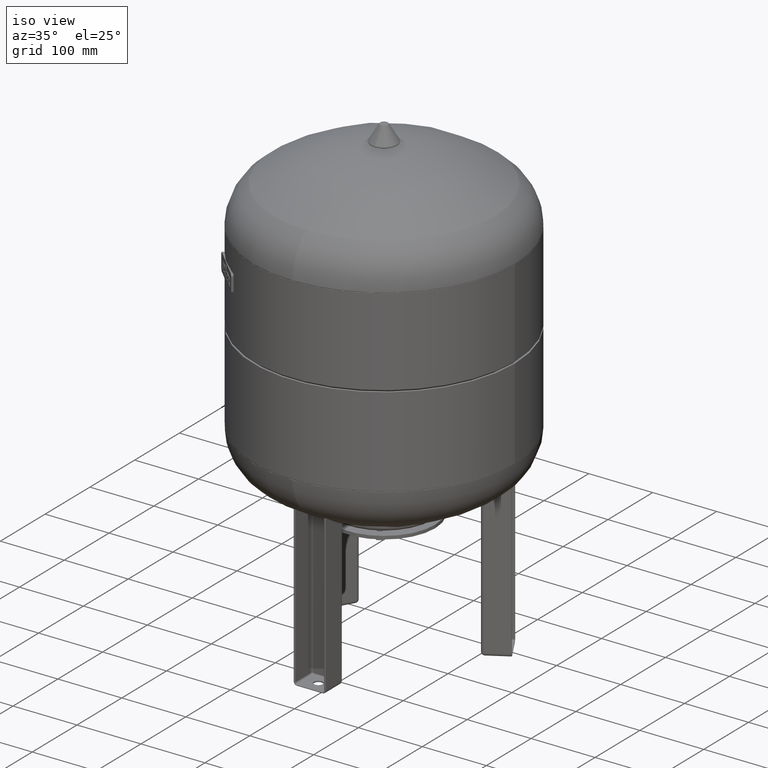
[diagram: clean part render]
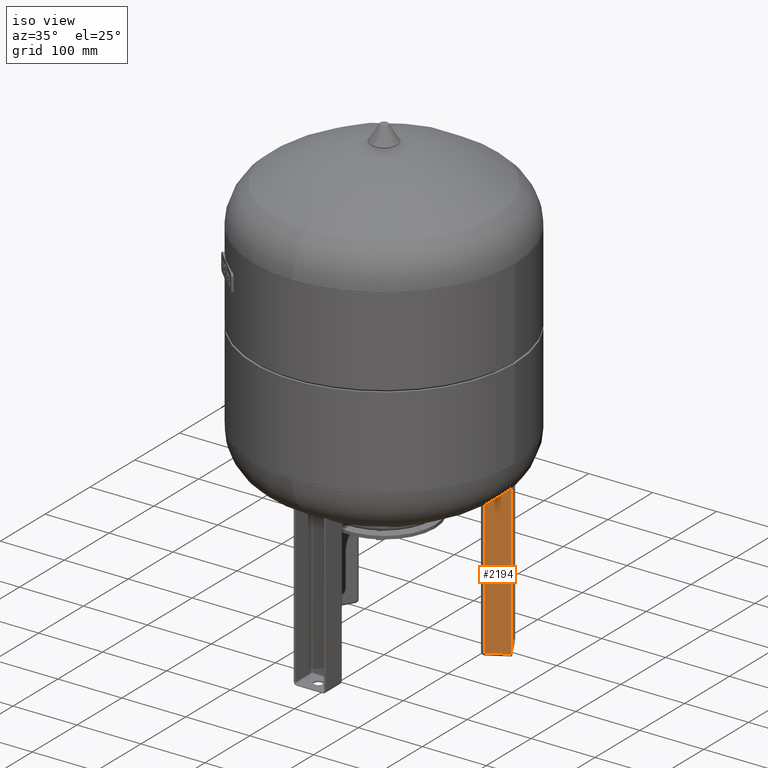
[diagram: same view with one face highlighted and labeled with its STEP entity id]
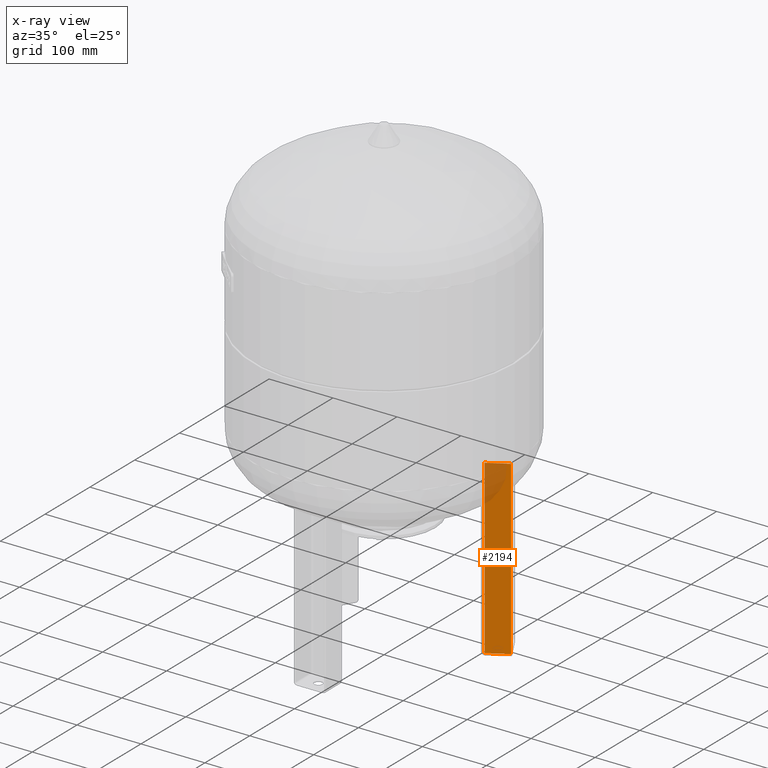
[diagram: x-ray of the same camera — body ghosted, the highlighted face saturated]
A machine part, iso view. The second image highlights one B-rep face of the part: STEP entity #2194.
The next image is the same camera in x-ray: the body ghosted, the highlighted face saturated — about 13% of this face is hidden behind the body in this view.
In plain terms, the highlighted planar face has unit normal (0.5, -0.866, -0).
Its self-contained STEP definition (entity closure, byte-faithful):
#1366=CARTESIAN_POINT('',(126.382340597653690,44.099364905389002,274.0));
#1367=VERTEX_POINT('',#1366);
#1375=CARTESIAN_POINT('',(155.827204326324620,61.099364905389002,274.0));
#1376=VERTEX_POINT('',#1375);
#1377=CARTESIAN_POINT('',(155.827204326324620,61.099364905389002,274.0));
#1378=DIRECTION('',(-0.866025403784439,-0.500000000000000,0.0));
#1379=VECTOR('',#1378,34.000000000000007);
#1380=LINE('',#1377,#1379);
#1381=EDGE_CURVE('',#1376,#1367,#1380,.T.);
#1686=CARTESIAN_POINT('',(155.827204326324620,61.099364905389002,4.999999999999996));
#1687=VERTEX_POINT('',#1686);
#1688=CARTESIAN_POINT('',(155.827204326324620,61.099364905389002,4.999999999999996));
#1689=DIRECTION('',(0.0,0.0,1.0));
#1690=VECTOR('',#1689,269.0);
#1691=LINE('',#1688,#1690);
#1692=EDGE_CURVE('',#1687,#1376,#1691,.T.);
#2069=CARTESIAN_POINT('',(126.382340597653690,44.099364905389010,4.999999999999996));
#2070=VERTEX_POINT('',#2069);
#2071=CARTESIAN_POINT('',(155.827204326324620,61.099364905389002,4.999999999999996));
#2072=DIRECTION('',(-0.866025403784439,-0.500000000000000,0.0));
#2073=VECTOR('',#2072,34.000000000000007);
#2074=LINE('',#2071,#2073);
#2075=EDGE_CURVE('',#1687,#2070,#2074,.T.);
#2172=CARTESIAN_POINT('',(126.382340597653690,44.099364905389010,4.999999999999996));
#2173=DIRECTION('',(0.0,0.0,1.0));
#2174=VECTOR('',#2173,269.0);
#2175=LINE('',#2172,#2174);
#2176=EDGE_CURVE('',#2070,#1367,#2175,.T.);
#2183=CARTESIAN_POINT('',(156.693229730109040,61.599364905389010,-4.592425E-015));
#2184=DIRECTION('',(0.500000000000000,-0.866025403784439,-1.836970E-016));
#2185=DIRECTION('',(0.866025403784439,0.500000000000000,4.078893E-032));
#2186=AXIS2_PLACEMENT_3D('',#2183,#2184,#2185);
#2187=PLANE('',#2186);
#2188=ORIENTED_EDGE('',*,*,#1692,.T.);
#2189=ORIENTED_EDGE('',*,*,#1381,.T.);
#2190=ORIENTED_EDGE('',*,*,#2176,.F.);
#2191=ORIENTED_EDGE('',*,*,#2075,.F.);
#2192=EDGE_LOOP('',(#2188,#2189,#2190,#2191));
#2193=FACE_OUTER_BOUND('',#2192,.T.);
#2194=ADVANCED_FACE('',(#2193),#2187,.T.);